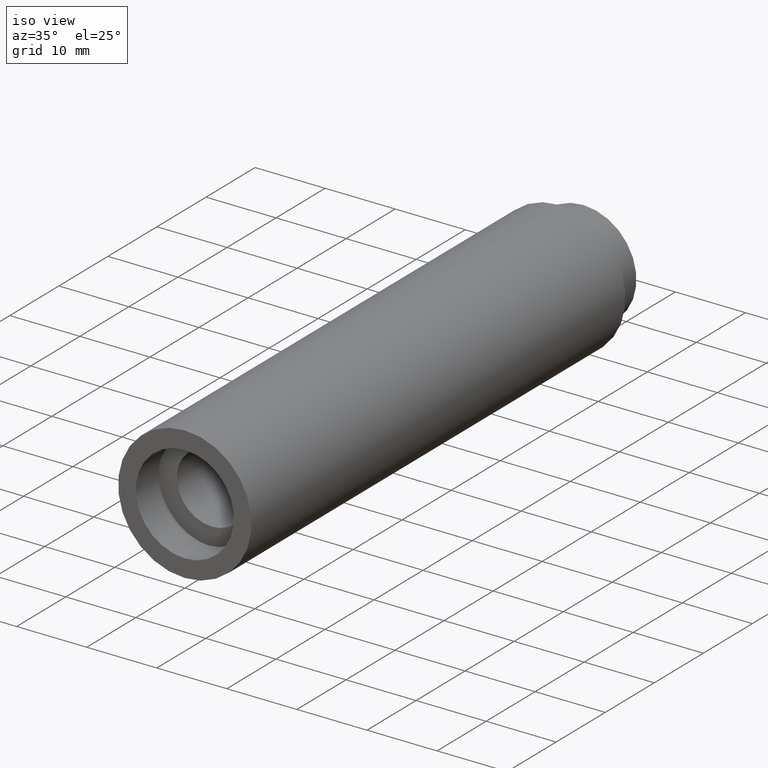
[diagram: clean part render]
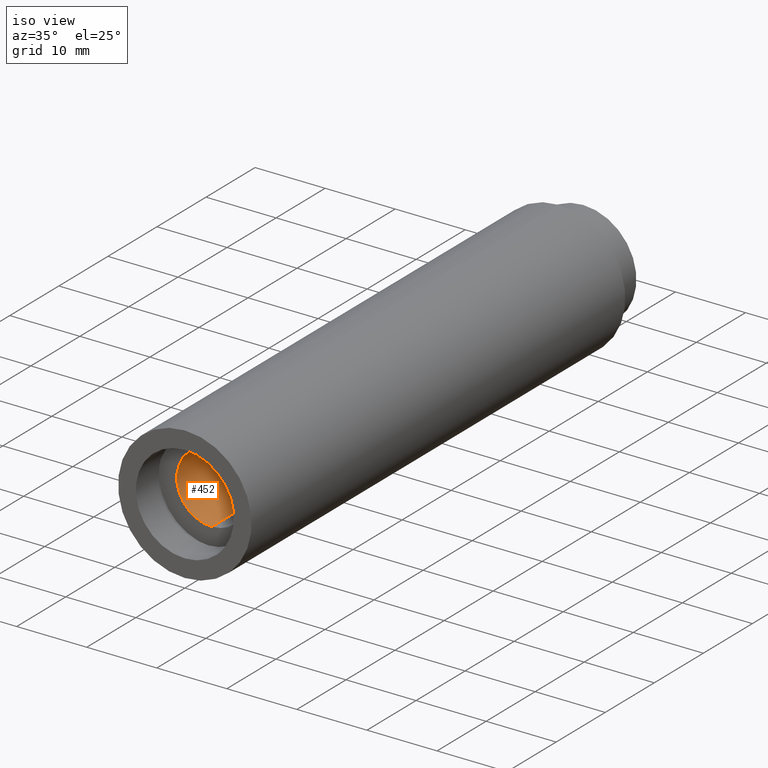
[diagram: same view with one face highlighted and labeled with its STEP entity id]
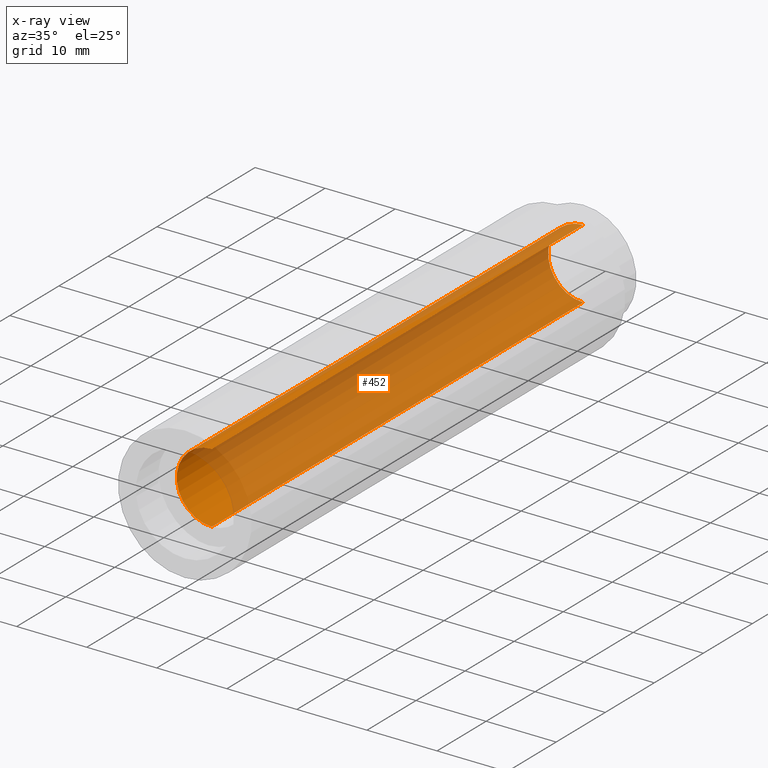
[diagram: x-ray of the same camera — body ghosted, the highlighted face saturated]
A machine part, iso view. The second image highlights one B-rep face of the part: STEP entity #452.
The next image is the same camera in x-ray: the body ghosted, the highlighted face saturated — about 86% of this face is hidden behind the body in this view.
In plain terms, the highlighted cylindrical surface (partial cylindrical patch) has radius 5 mm, axis along (-0, 1, -0).
Its self-contained STEP definition (entity closure, byte-faithful):
#22 = LINE ( 'NONE', #193, #329 ) ;
#52 = CARTESIAN_POINT ( 'NONE',  ( 6.123233995736789000E-016, 5.499999999999976900, -5.000000000000019500 ) ) ;
#66 = CARTESIAN_POINT ( 'NONE',  ( 0.0000000000000000000, 81.19999999999998900, 0.0000000000000000000 ) ) ;
#81 = DIRECTION ( 'NONE',  ( -0.0000000000000000000, 1.000000000000000000, -0.0000000000000000000 ) ) ;
#87 = DIRECTION ( 'NONE',  ( -0.0000000000000000000, 1.000000000000000000, -0.0000000000000000000 ) ) ;
#91 = EDGE_CURVE ( 'NONE', #364, #229, #458, .T. ) ;
#106 = CIRCLE ( 'NONE', #616, 5.000000000000018700 ) ;
#117 = LINE ( 'NONE', #475, #132 ) ;
#132 = VECTOR ( 'NONE', #241, 1000.000000000000000 ) ;
#174 = DIRECTION ( 'NONE',  ( -0.0000000000000000000, 1.000000000000000000, -0.0000000000000000000 ) ) ;
#192 = VERTEX_POINT ( 'NONE', #428 ) ;
#193 = CARTESIAN_POINT ( 'NONE',  ( 6.123233995736788000E-016, 161.3761669434274500, -5.000000000000018700 ) ) ;
#203 = EDGE_CURVE ( 'NONE', #364, #221, #22, .T. ) ;
#217 = DIRECTION ( 'NONE',  ( 0.0000000000000000000, 0.0000000000000000000, 1.000000000000000000 ) ) ;
#221 = VERTEX_POINT ( 'NONE', #518 ) ;
#229 = VERTEX_POINT ( 'NONE', #566 ) ;
#237 = CARTESIAN_POINT ( 'NONE',  ( 0.0000000000000000000, 161.3761669434274500, 0.0000000000000000000 ) ) ;
#241 = DIRECTION ( 'NONE',  ( -0.0000000000000000000, 1.000000000000000000, -0.0000000000000000000 ) ) ;
#254 = EDGE_CURVE ( 'NONE', #229, #192, #117, .T. ) ;
#263 = ORIENTED_EDGE ( 'NONE', *, *, #91, .F. ) ;
#320 = DIRECTION ( 'NONE',  ( 0.0000000000000000000, 0.0000000000000000000, 1.000000000000000000 ) ) ;
#328 = ORIENTED_EDGE ( 'NONE', *, *, #203, .T. ) ;
#329 = VECTOR ( 'NONE', #81, 1000.000000000000000 ) ;
#348 = FACE_OUTER_BOUND ( 'NONE', #498, .T. ) ;
#353 = DIRECTION ( 'NONE',  ( 0.0000000000000000000, 0.0000000000000000000, 1.000000000000000000 ) ) ;
#364 = VERTEX_POINT ( 'NONE', #52 ) ;
#404 = CYLINDRICAL_SURFACE ( 'NONE', #558, 5.000000000000018700 ) ;
#428 = CARTESIAN_POINT ( 'NONE',  ( 0.0000000000000000000, 81.19999999999998900, 5.000000000000018700 ) ) ;
#452 = ADVANCED_FACE ( 'NONE', ( #348 ), #404, .F. ) ;
#458 = CIRCLE ( 'NONE', #503, 5.000000000000019500 ) ;
#464 = ORIENTED_EDGE ( 'NONE', *, *, #549, .T. ) ;
#475 = CARTESIAN_POINT ( 'NONE',  ( 0.0000000000000000000, 161.3761669434274500, 5.000000000000018700 ) ) ;
#498 = EDGE_LOOP ( 'NONE', ( #263, #328, #464, #599 ) ) ;
#503 = AXIS2_PLACEMENT_3D ( 'NONE', #511, #514, #353 ) ;
#511 = CARTESIAN_POINT ( 'NONE',  ( 0.0000000000000000000, 5.499999999999976900, 0.0000000000000000000 ) ) ;
#514 = DIRECTION ( 'NONE',  ( -0.0000000000000000000, 1.000000000000000000, -0.0000000000000000000 ) ) ;
#518 = CARTESIAN_POINT ( 'NONE',  ( 6.123233995736788000E-016, 81.19999999999998900, -5.000000000000018700 ) ) ;
#549 = EDGE_CURVE ( 'NONE', #221, #192, #106, .T. ) ;
#558 = AXIS2_PLACEMENT_3D ( 'NONE', #237, #87, #320 ) ;
#566 = CARTESIAN_POINT ( 'NONE',  ( 0.0000000000000000000, 5.499999999999976900, 5.000000000000019500 ) ) ;
#599 = ORIENTED_EDGE ( 'NONE', *, *, #254, .F. ) ;
#616 = AXIS2_PLACEMENT_3D ( 'NONE', #66, #174, #217 ) ;